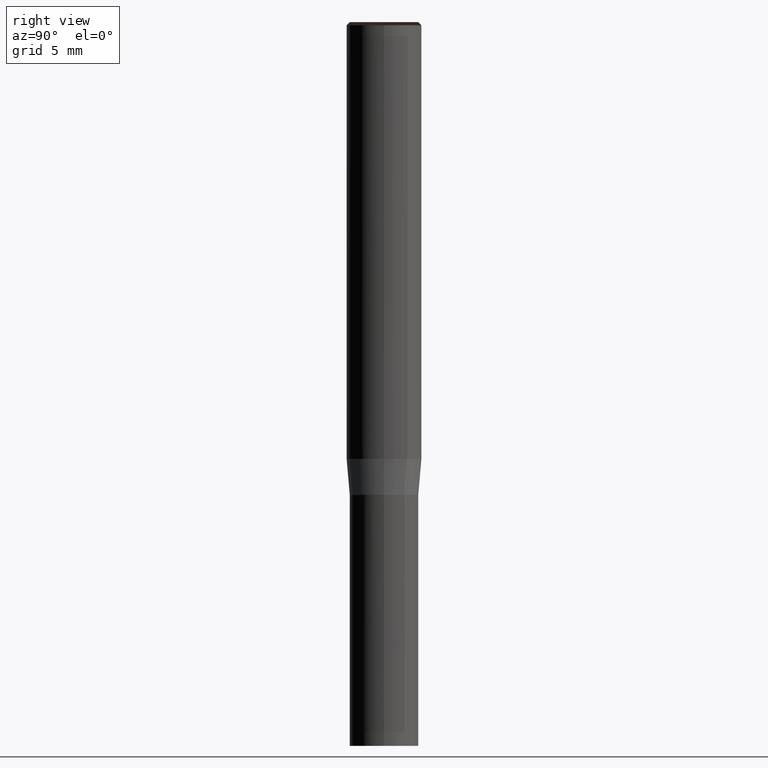
[diagram: clean part render]
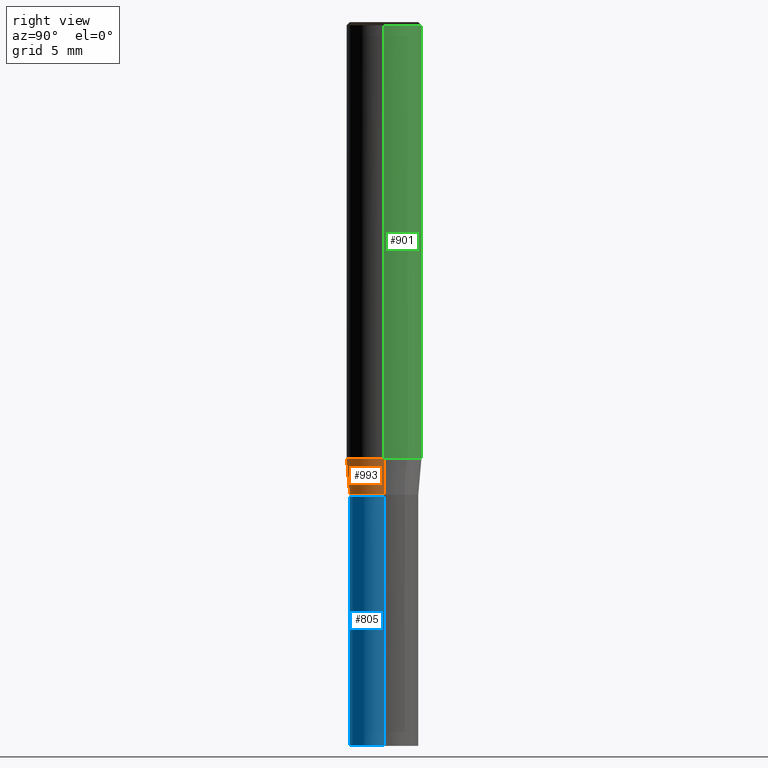
[diagram: same view with three faces highlighted in distinct colors, each labeled with its STEP entity id]
A machine part, right view with three faces highlighted in distinct colors.
Their STEP definitions:

[orange] entity #993 — the highlighted face is a freeform B-spline surface patch.
#680=CARTESIAN_POINT('',(2.75,0.0,-2.85751307569));
#684=CARTESIAN_POINT('',(-2.75,0.0,-2.85751307569));
#685=CARTESIAN_POINT('',(3.0,0.0,0.0));
#689=CARTESIAN_POINT('',(-3.0,0.0,0.0));
#701=CARTESIAN_POINT('',(-2.75,-2.75,-2.85751307569));
#702=CARTESIAN_POINT('',(0.0,-2.75,-2.85751307569));
#703=CARTESIAN_POINT('',(2.75,-2.75,-2.85751307569));
#704=CARTESIAN_POINT('',(-3.0,-3.0,0.0));
#705=CARTESIAN_POINT('',(0.0,-3.0,0.0));
#706=CARTESIAN_POINT('',(3.0,-3.0,0.0));
#974=(
BOUNDED_SURFACE()
B_SPLINE_SURFACE(1,2,(
(#684,#701,#702,#703,#680),
(#689,#704,#705,#706,#685)
), .UNSPECIFIED.,.F.,.F.,.F.)
B_SPLINE_SURFACE_WITH_KNOTS((2,2),(3,2,3),(
0.0,1.0),(
0.0,0.5,1.0), .UNSPECIFIED.)
GEOMETRIC_REPRESENTATION_ITEM()
RATIONAL_B_SPLINE_SURFACE(((1.0,0.707106781187,1.0,0.707106781187,1.0),
(1.0,0.707106781187,1.0,0.707106781187,1.0)
))
REPRESENTATION_ITEM('')
SURFACE()
);
#975=(
BOUNDED_CURVE()
B_SPLINE_CURVE(2,(#680,#703,#702,#701,#684),.UNSPECIFIED.,.F.,.F.)
B_SPLINE_CURVE_WITH_KNOTS((3,2,3),
(0.0,0.5,1.0),.UNSPECIFIED.)
CURVE()
GEOMETRIC_REPRESENTATION_ITEM()
RATIONAL_B_SPLINE_CURVE((1.0,0.707106781187,1.0,0.707106781187,1.0))
REPRESENTATION_ITEM('')
);
#976=(
BOUNDED_CURVE()
B_SPLINE_CURVE(1,(#684,#689),.UNSPECIFIED.,.F.,.F.)
B_SPLINE_CURVE_WITH_KNOTS((2,2),
(0.0,1.0),.UNSPECIFIED.)
CURVE()
GEOMETRIC_REPRESENTATION_ITEM()
RATIONAL_B_SPLINE_CURVE((1.0,1.0))
REPRESENTATION_ITEM('')
);
#977=(
BOUNDED_CURVE()
B_SPLINE_CURVE(2,(#689,#704,#705,#706,#685),.UNSPECIFIED.,.F.,.F.)
B_SPLINE_CURVE_WITH_KNOTS((3,2,3),
(0.0,0.5,1.0),.UNSPECIFIED.)
CURVE()
GEOMETRIC_REPRESENTATION_ITEM()
RATIONAL_B_SPLINE_CURVE((1.0,0.707106781187,1.0,0.707106781187,1.0))
REPRESENTATION_ITEM('')
);
#978=(
BOUNDED_CURVE()
B_SPLINE_CURVE(1,(#685,#680),.UNSPECIFIED.,.F.,.F.)
B_SPLINE_CURVE_WITH_KNOTS((2,2),
(0.0,1.0),.UNSPECIFIED.)
CURVE()
GEOMETRIC_REPRESENTATION_ITEM()
RATIONAL_B_SPLINE_CURVE((1.0,1.0))
REPRESENTATION_ITEM('')
);
#979=VERTEX_POINT('',#680);
#980=VERTEX_POINT('',#684);
#981=VERTEX_POINT('',#685);
#982=VERTEX_POINT('',#689);
#983=EDGE_CURVE('',#979,#980,#975,.T.);
#984=EDGE_CURVE('',#980,#982,#976,.T.);
#985=EDGE_CURVE('',#982,#981,#977,.T.);
#986=EDGE_CURVE('',#981,#979,#978,.T.);
#987=ORIENTED_EDGE('',*,*,#983,.T.);
#988=ORIENTED_EDGE('',*,*,#984,.T.);
#989=ORIENTED_EDGE('',*,*,#985,.T.);
#990=ORIENTED_EDGE('',*,*,#986,.T.);
#991=EDGE_LOOP('',(#987,#988,#989,#990));
#992=FACE_OUTER_BOUND('',#991,.T.);
#993=ADVANCED_FACE('',(#992),#974,.T.);

[blue] entity #805 — the highlighted face is a freeform B-spline surface patch.
#663=CARTESIAN_POINT('',(2.75,0.0,-23.0));
#667=CARTESIAN_POINT('',(-2.75,0.0,-23.0));
#668=CARTESIAN_POINT('',(2.75,0.0,-3.0));
#672=CARTESIAN_POINT('',(-2.75,0.0,-3.0));
#674=CARTESIAN_POINT('',(-2.75,-2.75,-23.0));
#675=CARTESIAN_POINT('',(0.0,-2.75,-23.0));
#676=CARTESIAN_POINT('',(2.75,-2.75,-23.0));
#677=CARTESIAN_POINT('',(-2.75,-2.75,-3.0));
#678=CARTESIAN_POINT('',(0.0,-2.75,-3.0));
#679=CARTESIAN_POINT('',(2.75,-2.75,-3.0));
#786=(
BOUNDED_SURFACE()
B_SPLINE_SURFACE(1,2,(
(#667,#674,#675,#676,#663),
(#672,#677,#678,#679,#668)
), .UNSPECIFIED.,.F.,.F.,.F.)
B_SPLINE_SURFACE_WITH_KNOTS((2,2),(3,2,3),(
0.0,1.0),(
0.0,0.5,1.0), .UNSPECIFIED.)
GEOMETRIC_REPRESENTATION_ITEM()
RATIONAL_B_SPLINE_SURFACE(((1.0,0.707106781187,1.0,0.707106781187,1.0),
(1.0,0.707106781187,1.0,0.707106781187,1.0)
))
REPRESENTATION_ITEM('')
SURFACE()
);
#787=(
BOUNDED_CURVE()
B_SPLINE_CURVE(2,(#663,#676,#675,#674,#667),.UNSPECIFIED.,.F.,.F.)
B_SPLINE_CURVE_WITH_KNOTS((3,2,3),
(0.0,0.5,1.0),.UNSPECIFIED.)
CURVE()
GEOMETRIC_REPRESENTATION_ITEM()
RATIONAL_B_SPLINE_CURVE((1.0,0.707106781187,1.0,0.707106781187,1.0))
REPRESENTATION_ITEM('')
);
#788=(
BOUNDED_CURVE()
B_SPLINE_CURVE(1,(#667,#672),.UNSPECIFIED.,.F.,.F.)
B_SPLINE_CURVE_WITH_KNOTS((2,2),
(0.0,1.0),.UNSPECIFIED.)
CURVE()
GEOMETRIC_REPRESENTATION_ITEM()
RATIONAL_B_SPLINE_CURVE((1.0,1.0))
REPRESENTATION_ITEM('')
);
#789=(
BOUNDED_CURVE()
B_SPLINE_CURVE(2,(#672,#677,#678,#679,#668),.UNSPECIFIED.,.F.,.F.)
B_SPLINE_CURVE_WITH_KNOTS((3,2,3),
(0.0,0.5,1.0),.UNSPECIFIED.)
CURVE()
GEOMETRIC_REPRESENTATION_ITEM()
RATIONAL_B_SPLINE_CURVE((1.0,0.707106781187,1.0,0.707106781187,1.0))
REPRESENTATION_ITEM('')
);
#790=(
BOUNDED_CURVE()
B_SPLINE_CURVE(1,(#668,#663),.UNSPECIFIED.,.F.,.F.)
B_SPLINE_CURVE_WITH_KNOTS((2,2),
(0.0,1.0),.UNSPECIFIED.)
CURVE()
GEOMETRIC_REPRESENTATION_ITEM()
RATIONAL_B_SPLINE_CURVE((1.0,1.0))
REPRESENTATION_ITEM('')
);
#791=VERTEX_POINT('',#663);
#792=VERTEX_POINT('',#667);
#793=VERTEX_POINT('',#668);
#794=VERTEX_POINT('',#672);
#795=EDGE_CURVE('',#791,#792,#787,.T.);
#796=EDGE_CURVE('',#792,#794,#788,.T.);
#797=EDGE_CURVE('',#794,#793,#789,.T.);
#798=EDGE_CURVE('',#793,#791,#790,.T.);
#799=ORIENTED_EDGE('',*,*,#795,.T.);
#800=ORIENTED_EDGE('',*,*,#796,.T.);
#801=ORIENTED_EDGE('',*,*,#797,.T.);
#802=ORIENTED_EDGE('',*,*,#798,.T.);
#803=EDGE_LOOP('',(#799,#800,#801,#802));
#804=FACE_OUTER_BOUND('',#803,.T.);
#805=ADVANCED_FACE('',(#804),#786,.T.);

[green] entity #901 — the highlighted face is a freeform B-spline surface patch.
#685=CARTESIAN_POINT('',(3.0,0.0,0.0));
#686=CARTESIAN_POINT('',(3.0,3.0,0.0));
#687=CARTESIAN_POINT('',(0.0,3.0,0.0));
#688=CARTESIAN_POINT('',(-3.0,3.0,0.0));
#689=CARTESIAN_POINT('',(-3.0,0.0,0.0));
#690=CARTESIAN_POINT('',(3.0,0.0,34.75));
#691=CARTESIAN_POINT('',(3.0,3.0,34.75));
#692=CARTESIAN_POINT('',(0.0,3.0,34.75));
#693=CARTESIAN_POINT('',(-3.0,3.0,34.75));
#694=CARTESIAN_POINT('',(-3.0,0.0,34.75));
#882=(
BOUNDED_SURFACE()
B_SPLINE_SURFACE(1,2,(
(#685,#686,#687,#688,#689),
(#690,#691,#692,#693,#694)
), .UNSPECIFIED.,.F.,.F.,.F.)
B_SPLINE_SURFACE_WITH_KNOTS((2,2),(3,2,3),(
0.0,1.0),(
0.0,0.5,1.0), .UNSPECIFIED.)
GEOMETRIC_REPRESENTATION_ITEM()
RATIONAL_B_SPLINE_SURFACE(((1.0,0.707106781187,1.0,0.707106781187,1.0),
(1.0,0.707106781187,1.0,0.707106781187,1.0)
))
REPRESENTATION_ITEM('')
SURFACE()
);
#883=(
BOUNDED_CURVE()
B_SPLINE_CURVE(2,(#689,#688,#687,#686,#685),.UNSPECIFIED.,.F.,.F.)
B_SPLINE_CURVE_WITH_KNOTS((3,2,3),
(0.0,0.5,1.0),.UNSPECIFIED.)
CURVE()
GEOMETRIC_REPRESENTATION_ITEM()
RATIONAL_B_SPLINE_CURVE((1.0,0.707106781187,1.0,0.707106781187,1.0))
REPRESENTATION_ITEM('')
);
#884=(
BOUNDED_CURVE()
B_SPLINE_CURVE(1,(#685,#690),.UNSPECIFIED.,.F.,.F.)
B_SPLINE_CURVE_WITH_KNOTS((2,2),
(0.0,1.0),.UNSPECIFIED.)
CURVE()
GEOMETRIC_REPRESENTATION_ITEM()
RATIONAL_B_SPLINE_CURVE((1.0,1.0))
REPRESENTATION_ITEM('')
);
#885=(
BOUNDED_CURVE()
B_SPLINE_CURVE(2,(#690,#691,#692,#693,#694),.UNSPECIFIED.,.F.,.F.)
B_SPLINE_CURVE_WITH_KNOTS((3,2,3),
(0.0,0.5,1.0),.UNSPECIFIED.)
CURVE()
GEOMETRIC_REPRESENTATION_ITEM()
RATIONAL_B_SPLINE_CURVE((1.0,0.707106781187,1.0,0.707106781187,1.0))
REPRESENTATION_ITEM('')
);
#886=(
BOUNDED_CURVE()
B_SPLINE_CURVE(1,(#694,#689),.UNSPECIFIED.,.F.,.F.)
B_SPLINE_CURVE_WITH_KNOTS((2,2),
(0.0,1.0),.UNSPECIFIED.)
CURVE()
GEOMETRIC_REPRESENTATION_ITEM()
RATIONAL_B_SPLINE_CURVE((1.0,1.0))
REPRESENTATION_ITEM('')
);
#887=VERTEX_POINT('',#685);
#888=VERTEX_POINT('',#689);
#889=VERTEX_POINT('',#690);
#890=VERTEX_POINT('',#694);
#891=EDGE_CURVE('',#888,#887,#883,.T.);
#892=EDGE_CURVE('',#887,#889,#884,.T.);
#893=EDGE_CURVE('',#889,#890,#885,.T.);
#894=EDGE_CURVE('',#890,#888,#886,.T.);
#895=ORIENTED_EDGE('',*,*,#891,.T.);
#896=ORIENTED_EDGE('',*,*,#892,.T.);
#897=ORIENTED_EDGE('',*,*,#893,.T.);
#898=ORIENTED_EDGE('',*,*,#894,.T.);
#899=EDGE_LOOP('',(#895,#896,#897,#898));
#900=FACE_OUTER_BOUND('',#899,.T.);
#901=ADVANCED_FACE('',(#900),#882,.T.);